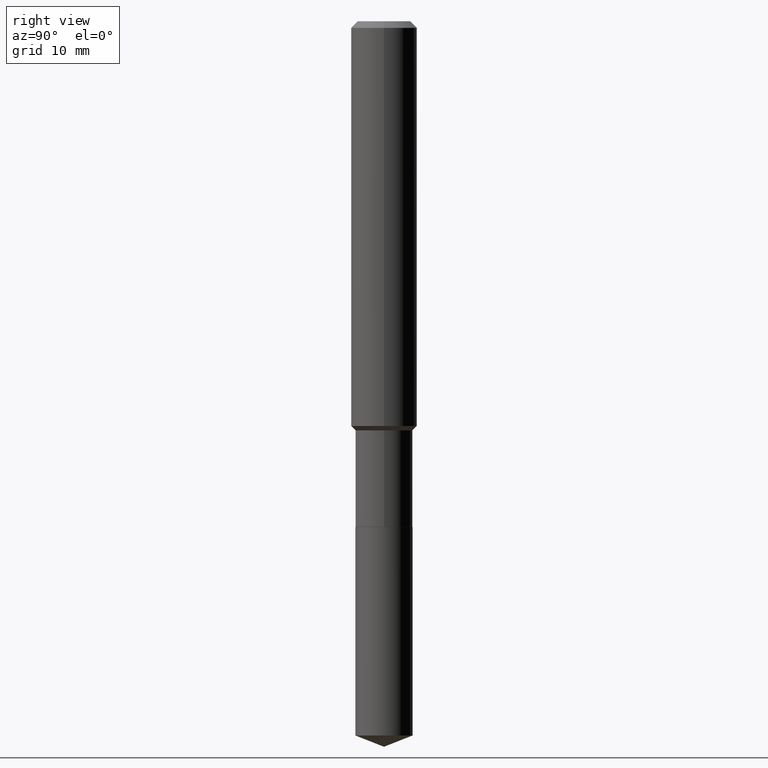
[diagram: clean part render]
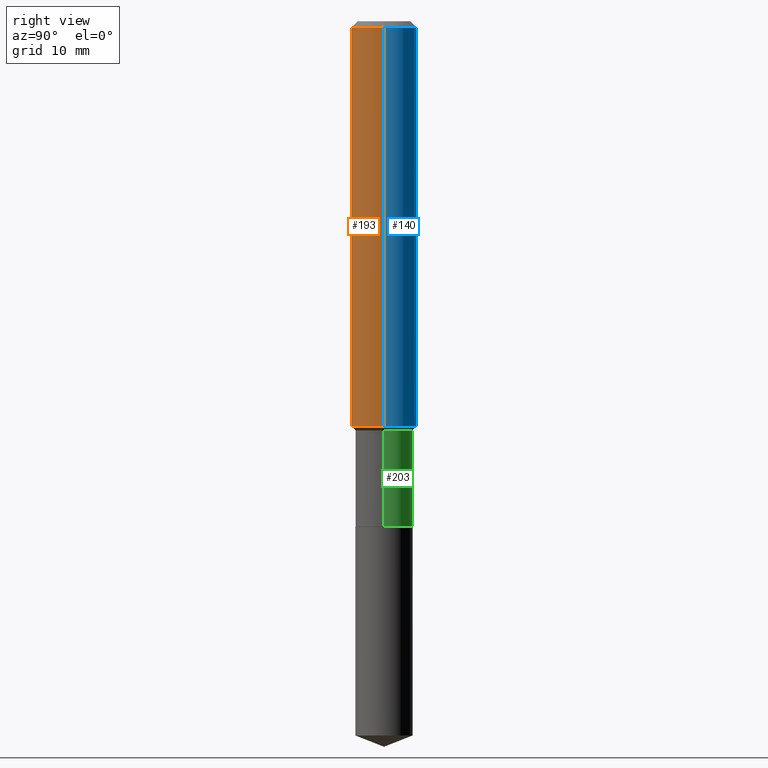
[diagram: same view with three faces highlighted in distinct colors, each labeled with its STEP entity id]
A machine part, right view with three faces highlighted in distinct colors.
Their STEP definitions:

[orange] entity #193 — the highlighted cylindrical surface (edge-blend (fillet) strip) has radius 2.9997 mm, axis along (-0, 0, 1).
#5 = CARTESIAN_POINT ( 'NONE',  ( 3.544829308005663759E-29, -5.061076774720079395E-15, -1.449549999999999672 ) ) ;
#8 = CARTESIAN_POINT ( 'NONE',  ( -0.1180999999999999966, -1.732621811039098046E-15, -0.02362000000000014088 ) ) ;
#20 = ORIENTED_EDGE ( 'NONE', *, *, #63, .F. ) ;
#21 = VECTOR ( 'NONE', #430, 39.37007874015748143 ) ;
#25 = CARTESIAN_POINT ( 'NONE',  ( 0.1180999999999999966, -9.071566814582237199E-16, -0.02362000000000014088 ) ) ;
#32 = CYLINDRICAL_SURFACE ( 'NONE', #479, 0.1181000000000000799 ) ;
#41 = DIRECTION ( 'NONE',  ( 1.000000000000000000, -6.982962677686270655E-15, 0.000000000000000000 ) ) ;
#58 = CARTESIAN_POINT ( 'NONE',  ( -0.1181000000000000799, 8.391509709326788873E-16, -5.809262341591047988E-30 ) ) ;
#59 = EDGE_LOOP ( 'NONE', ( #20, #411, #410, #202 ) ) ;
#60 = CIRCLE ( 'NONE', #154, 0.1180999999999999966 ) ;
#62 = VERTEX_POINT ( 'NONE', #353 ) ;
#63 = EDGE_CURVE ( 'NONE', #402, #303, #160, .T. ) ;
#74 = AXIS2_PLACEMENT_3D ( 'NONE', #5, #80, #41 ) ;
#80 = DIRECTION ( 'NONE',  ( -2.445468806185136597E-29, 3.491481338843145583E-15, 1.000000000000000000 ) ) ;
#89 = EDGE_CURVE ( 'NONE', #303, #100, #60, .T. ) ;
#99 = DIRECTION ( 'NONE',  ( -2.445468806185136597E-29, 3.491481338843145583E-15, 1.000000000000000000 ) ) ;
#100 = VERTEX_POINT ( 'NONE', #25 ) ;
#101 = DIRECTION ( 'NONE',  ( -2.445468806185136877E-29, 3.491481338843145188E-15, 1.000000000000000000 ) ) ;
#154 = AXIS2_PLACEMENT_3D ( 'NONE', #362, #99, #215 ) ;
#160 = LINE ( 'NONE', #58, #21 ) ;
#166 = LINE ( 'NONE', #293, #345 ) ;
#190 = CARTESIAN_POINT ( 'NONE',  ( -0.1181000000000001632, -4.221925803787400409E-15, -1.449549999999999672 ) ) ;
#193 = ADVANCED_FACE ( 'NONE', ( #327 ), #32, .T. ) ;
#202 = ORIENTED_EDGE ( 'NONE', *, *, #89, .F. ) ;
#215 = DIRECTION ( 'NONE',  ( 1.000000000000000000, -6.982962677686266711E-15, 0.000000000000000000 ) ) ;
#224 = EDGE_CURVE ( 'NONE', #402, #62, #290, .T. ) ;
#270 = EDGE_CURVE ( 'NONE', #62, #100, #166, .T. ) ;
#290 = CIRCLE ( 'NONE', #74, 0.1181000000000001632 ) ;
#293 = CARTESIAN_POINT ( 'NONE',  ( 0.1181000000000000799, -8.246878922347486570E-16, 5.758764772215004644E-30 ) ) ;
#303 = VERTEX_POINT ( 'NONE', #8 ) ;
#327 = FACE_OUTER_BOUND ( 'NONE', #59, .T. ) ;
#345 = VECTOR ( 'NONE', #101, 39.37007874015748143 ) ;
#353 = CARTESIAN_POINT ( 'NONE',  ( 0.1181000000000001632, -5.885764666954828446E-15, -1.449549999999999672 ) ) ;
#362 = CARTESIAN_POINT ( 'NONE',  ( 5.776197320209327532E-31, -8.246878922347559293E-17, -0.02362000000000014088 ) ) ;
#402 = VERTEX_POINT ( 'NONE', #190 ) ;
#410 = ORIENTED_EDGE ( 'NONE', *, *, #270, .T. ) ;
#411 = ORIENTED_EDGE ( 'NONE', *, *, #224, .T. ) ;
#430 = DIRECTION ( 'NONE',  ( -2.445468806185136877E-29, 3.491481338843145188E-15, 1.000000000000000000 ) ) ;
#443 = DIRECTION ( 'NONE',  ( -2.445468806185136597E-29, 3.491481338843145583E-15, 1.000000000000000000 ) ) ;
#479 = AXIS2_PLACEMENT_3D ( 'NONE', #484, #443, #481 ) ;
#481 = DIRECTION ( 'NONE',  ( 1.000000000000000000, -6.982962677686266711E-15, 4.876176775795936353E-29 ) ) ;
#484 = CARTESIAN_POINT ( 'NONE',  ( 0.000000000000000000, 0.000000000000000000, 0.000000000000000000 ) ) ;

[blue] entity #140 — the highlighted cylindrical surface (edge-blend (fillet) strip) has radius 2.9997 mm, axis along (-0, 0, 1).
#8 = CARTESIAN_POINT ( 'NONE',  ( -0.1180999999999999966, -1.732621811039098046E-15, -0.02362000000000014088 ) ) ;
#21 = VECTOR ( 'NONE', #430, 39.37007874015748143 ) ;
#24 = FACE_OUTER_BOUND ( 'NONE', #390, .T. ) ;
#25 = CARTESIAN_POINT ( 'NONE',  ( 0.1180999999999999966, -9.071566814582237199E-16, -0.02362000000000014088 ) ) ;
#27 = CARTESIAN_POINT ( 'NONE',  ( 3.544829308005663759E-29, -5.061076774720079395E-15, -1.449549999999999672 ) ) ;
#58 = CARTESIAN_POINT ( 'NONE',  ( -0.1181000000000000799, 8.391509709326788873E-16, -5.809262341591047988E-30 ) ) ;
#62 = VERTEX_POINT ( 'NONE', #353 ) ;
#63 = EDGE_CURVE ( 'NONE', #402, #303, #160, .T. ) ;
#91 = AXIS2_PLACEMENT_3D ( 'NONE', #27, #168, #444 ) ;
#100 = VERTEX_POINT ( 'NONE', #25 ) ;
#101 = DIRECTION ( 'NONE',  ( -2.445468806185136877E-29, 3.491481338843145188E-15, 1.000000000000000000 ) ) ;
#106 = DIRECTION ( 'NONE',  ( 1.000000000000000000, -6.982962677686266711E-15, 4.876176775795936353E-29 ) ) ;
#121 = CYLINDRICAL_SURFACE ( 'NONE', #245, 0.1181000000000000799 ) ;
#140 = ADVANCED_FACE ( 'NONE', ( #24 ), #121, .T. ) ;
#160 = LINE ( 'NONE', #58, #21 ) ;
#166 = LINE ( 'NONE', #293, #345 ) ;
#167 = DIRECTION ( 'NONE',  ( 1.000000000000000000, -6.982962677686266711E-15, 0.000000000000000000 ) ) ;
#168 = DIRECTION ( 'NONE',  ( -2.445468806185136597E-29, 3.491481338843145583E-15, 1.000000000000000000 ) ) ;
#190 = CARTESIAN_POINT ( 'NONE',  ( -0.1181000000000001632, -4.221925803787400409E-15, -1.449549999999999672 ) ) ;
#201 = DIRECTION ( 'NONE',  ( -2.445468806185136597E-29, 3.491481338843145583E-15, 1.000000000000000000 ) ) ;
#205 = CIRCLE ( 'NONE', #460, 0.1180999999999999966 ) ;
#245 = AXIS2_PLACEMENT_3D ( 'NONE', #367, #457, #106 ) ;
#263 = ORIENTED_EDGE ( 'NONE', *, *, #490, .F. ) ;
#270 = EDGE_CURVE ( 'NONE', #62, #100, #166, .T. ) ;
#277 = CIRCLE ( 'NONE', #91, 0.1181000000000001632 ) ;
#293 = CARTESIAN_POINT ( 'NONE',  ( 0.1181000000000000799, -8.246878922347486570E-16, 5.758764772215004644E-30 ) ) ;
#303 = VERTEX_POINT ( 'NONE', #8 ) ;
#319 = ORIENTED_EDGE ( 'NONE', *, *, #320, .T. ) ;
#320 = EDGE_CURVE ( 'NONE', #62, #402, #277, .T. ) ;
#345 = VECTOR ( 'NONE', #101, 39.37007874015748143 ) ;
#351 = ORIENTED_EDGE ( 'NONE', *, *, #63, .T. ) ;
#353 = CARTESIAN_POINT ( 'NONE',  ( 0.1181000000000001632, -5.885764666954828446E-15, -1.449549999999999672 ) ) ;
#360 = CARTESIAN_POINT ( 'NONE',  ( 5.776197320209327532E-31, -8.246878922347559293E-17, -0.02362000000000014088 ) ) ;
#367 = CARTESIAN_POINT ( 'NONE',  ( 0.000000000000000000, 0.000000000000000000, 0.000000000000000000 ) ) ;
#390 = EDGE_LOOP ( 'NONE', ( #319, #351, #263, #432 ) ) ;
#402 = VERTEX_POINT ( 'NONE', #190 ) ;
#430 = DIRECTION ( 'NONE',  ( -2.445468806185136877E-29, 3.491481338843145188E-15, 1.000000000000000000 ) ) ;
#432 = ORIENTED_EDGE ( 'NONE', *, *, #270, .F. ) ;
#444 = DIRECTION ( 'NONE',  ( 1.000000000000000000, -6.982962677686270655E-15, 0.000000000000000000 ) ) ;
#457 = DIRECTION ( 'NONE',  ( -2.445468806185136597E-29, 3.491481338843145583E-15, 1.000000000000000000 ) ) ;
#460 = AXIS2_PLACEMENT_3D ( 'NONE', #360, #201, #167 ) ;
#490 = EDGE_CURVE ( 'NONE', #100, #303, #205, .T. ) ;

[green] entity #203 — the highlighted cylindrical surface (edge-blend (fillet) strip) has radius 2.5997 mm, axis along (-0, 0, 1).
#2 = CARTESIAN_POINT ( 'NONE',  ( 0.1023499999999999827, -7.147062300611892976E-16, 4.990766930027139796E-30 ) ) ;
#29 = EDGE_CURVE ( 'NONE', #326, #347, #414, .T. ) ;
#39 = AXIS2_PLACEMENT_3D ( 'NONE', #169, #306, #253 ) ;
#86 = CARTESIAN_POINT ( 'NONE',  ( 4.427521273598189436E-29, -6.321326963975514491E-15, -1.810499999999999998 ) ) ;
#98 = CYLINDRICAL_SURFACE ( 'NONE', #39, 0.1023499999999999827 ) ;
#118 = FACE_OUTER_BOUND ( 'NONE', #424, .T. ) ;
#127 = EDGE_CURVE ( 'NONE', #326, #383, #186, .T. ) ;
#150 = CARTESIAN_POINT ( 'NONE',  ( -0.1023499999999999965, -4.991456794840725672E-15, -1.810499999999999998 ) ) ;
#157 = ORIENTED_EDGE ( 'NONE', *, *, #127, .F. ) ;
#158 = EDGE_CURVE ( 'NONE', #383, #450, #385, .T. ) ;
#169 = CARTESIAN_POINT ( 'NONE',  ( 0.000000000000000000, 0.000000000000000000, 0.000000000000000000 ) ) ;
#186 = LINE ( 'NONE', #2, #300 ) ;
#191 = CARTESIAN_POINT ( 'NONE',  ( -0.1023499999999999827, 7.272404900504624170E-16, -5.034530064875895945E-30 ) ) ;
#203 = ADVANCED_FACE ( 'NONE', ( #118 ), #98, .T. ) ;
#209 = DIRECTION ( 'NONE',  ( 1.000000000000000000, -6.982962677686262766E-15, 0.000000000000000000 ) ) ;
#214 = CARTESIAN_POINT ( 'NONE',  ( 0.1023499999999999965, -7.036033194036704874E-15, -1.810499999999999998 ) ) ;
#222 = AXIS2_PLACEMENT_3D ( 'NONE', #225, #342, #209 ) ;
#225 = CARTESIAN_POINT ( 'NONE',  ( 3.583345441703080279E-29, -5.116067605806860307E-15, -1.465299999999999825 ) ) ;
#237 = VECTOR ( 'NONE', #349, 39.37007874015748143 ) ;
#253 = DIRECTION ( 'NONE',  ( 1.000000000000000000, -6.982962677686266711E-15, 4.876176775795936353E-29 ) ) ;
#264 = ORIENTED_EDGE ( 'NONE', *, *, #456, .T. ) ;
#276 = AXIS2_PLACEMENT_3D ( 'NONE', #86, #284, #317 ) ;
#279 = LINE ( 'NONE', #191, #237 ) ;
#284 = DIRECTION ( 'NONE',  ( -2.445468806185136597E-29, 3.491481338843145583E-15, 1.000000000000000000 ) ) ;
#300 = VECTOR ( 'NONE', #462, 39.37007874015748143 ) ;
#306 = DIRECTION ( 'NONE',  ( -2.445468806185136597E-29, 3.491481338843145583E-15, 1.000000000000000000 ) ) ;
#317 = DIRECTION ( 'NONE',  ( 1.000000000000000000, -6.982962677686270655E-15, 0.000000000000000000 ) ) ;
#326 = VERTEX_POINT ( 'NONE', #214 ) ;
#336 = ORIENTED_EDGE ( 'NONE', *, *, #29, .T. ) ;
#342 = DIRECTION ( 'NONE',  ( -2.445468806185136597E-29, 3.491481338843145583E-15, 1.000000000000000000 ) ) ;
#347 = VERTEX_POINT ( 'NONE', #150 ) ;
#349 = DIRECTION ( 'NONE',  ( -2.445468806185136877E-29, 3.491481338843145188E-15, 1.000000000000000000 ) ) ;
#356 = ORIENTED_EDGE ( 'NONE', *, *, #158, .F. ) ;
#382 = CARTESIAN_POINT ( 'NONE',  ( -0.1023499999999999688, -4.991456794840725672E-15, -1.465299999999999825 ) ) ;
#383 = VERTEX_POINT ( 'NONE', #403 ) ;
#385 = CIRCLE ( 'NONE', #222, 0.1023499999999999688 ) ;
#403 = CARTESIAN_POINT ( 'NONE',  ( 0.1023499999999999688, -5.830773835868049112E-15, -1.465299999999999825 ) ) ;
#414 = CIRCLE ( 'NONE', #276, 0.1023499999999999965 ) ;
#424 = EDGE_LOOP ( 'NONE', ( #336, #264, #356, #157 ) ) ;
#450 = VERTEX_POINT ( 'NONE', #382 ) ;
#456 = EDGE_CURVE ( 'NONE', #347, #450, #279, .T. ) ;
#462 = DIRECTION ( 'NONE',  ( -2.445468806185136877E-29, 3.491481338843145188E-15, 1.000000000000000000 ) ) ;